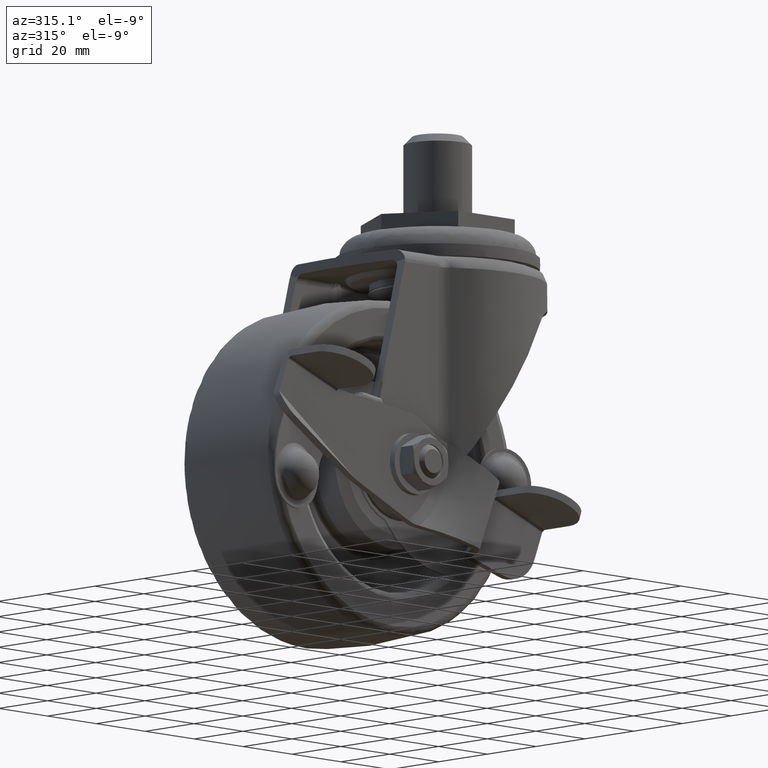
[diagram: clean part render]
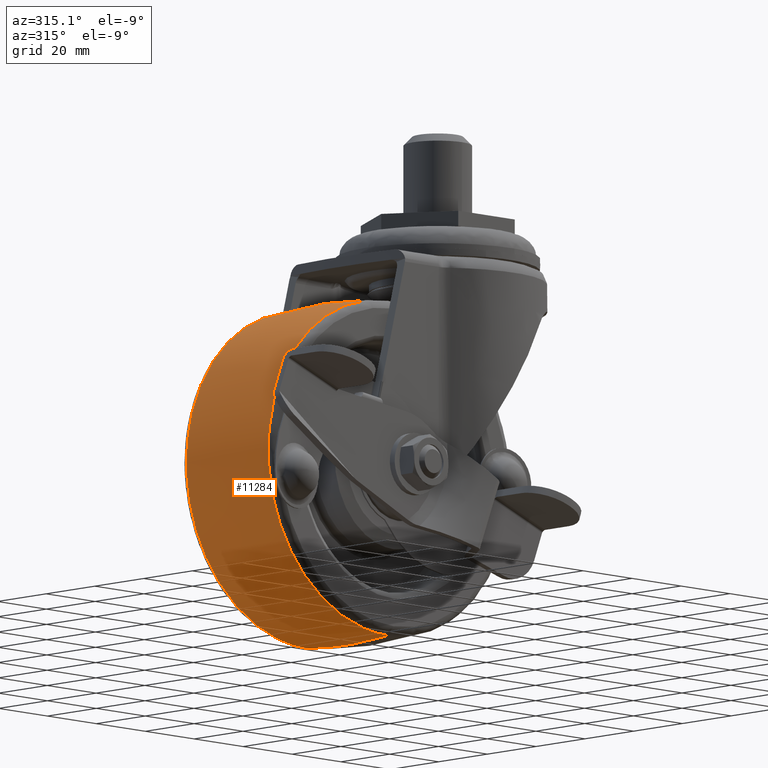
[diagram: same view with one face highlighted and labeled with its STEP entity id]
A machine part, auxiliary view. The second image highlights one B-rep face of the part: STEP entity #11284.
In plain terms, the highlighted face is a freeform B-spline surface patch.
Its self-contained STEP definition (entity closure, byte-faithful):
#11003=CARTESIAN_POINT('',(-85.868843852250095,-16.779638064506781,-77.809849971038830));
#11004=VERTEX_POINT('',#11003);
#11018=CARTESIAN_POINT('',(-37.0,-16.779637920549199,-122.558524584321300));
#11019=VERTEX_POINT('',#11018);
#11020=CARTESIAN_POINT('',(-85.868843852250095,-16.779638064506788,-77.809849971038830));
#11021=CARTESIAN_POINT('',(-81.922360370645549,-16.779637992541478,-122.558524640269350));
#11022=CARTESIAN_POINT('',(-37.0,-16.779637920549199,-122.558524584321300));
#11030=(BOUNDED_CURVE()B_SPLINE_CURVE(2,(#11020,#11021,#11022),.UNSPECIFIED.,.F.,.U.)B_SPLINE_CURVE_WITH_KNOTS((3,3),(0.765281544351815,1.0),.UNSPECIFIED.)CURVE()GEOMETRIC_REPRESENTATION_ITEM()RATIONAL_B_SPLINE_CURVE((0.966381852339110,0.725010224041122,1.0))REPRESENTATION_ITEM(''));
#11031=EDGE_CURVE('',#11004,#11019,#11030,.T.);
#11093=CARTESIAN_POINT('',(-37.0,-16.779637920490050,-24.441475415672009));
#11094=VERTEX_POINT('',#11093);
#11108=CARTESIAN_POINT('',(-37.0,-16.779637920490050,-24.441475415672009));
#11109=CARTESIAN_POINT('',(-86.058522565242498,-16.779637986412595,-24.441475466902979));
#11110=CARTESIAN_POINT('',(-86.058523199629732,-16.779638058434461,-73.500000107175623));
#11111=CARTESIAN_POINT('',(-86.058523227549529,-16.779638061604189,-75.659098998873418));
#11112=CARTESIAN_POINT('',(-85.868843852250095,-16.779638064506788,-77.809849971038830));
#11120=(BOUNDED_CURVE()B_SPLINE_CURVE(2,(#11108,#11109,#11110,#11111,#11112),.UNSPECIFIED.,.F.,.U.)B_SPLINE_CURVE_WITH_KNOTS((3,2,3),(0.500000000000000,0.750000000000000,0.765281544351815),.UNSPECIFIED.)CURVE()GEOMETRIC_REPRESENTATION_ITEM()RATIONAL_B_SPLINE_CURVE((1.0,0.707106781186547,1.0,0.982096557145425,0.966381852339110))REPRESENTATION_ITEM(''));
#11121=EDGE_CURVE('',#11094,#11004,#11120,.T.);
#11160=CARTESIAN_POINT('',(-37.0,16.779649867030152,-122.558523239497300));
#11161=VERTEX_POINT('',#11160);
#11162=CARTESIAN_POINT('',(-37.0,-16.779637920549199,-122.558524584321300));
#11163=CARTESIAN_POINT('',(-37.000000000000043,-12.776367559165900,-123.009180097572300));
#11164=CARTESIAN_POINT('',(-36.999999999999950,-1.586281364282039,-123.814258282421310));
#11165=CARTESIAN_POINT('',(-37.000000000000057,9.643407289933570,-123.362239167050400));
#11166=CARTESIAN_POINT('',(-37.0,16.779649867030152,-122.558523239497300));
#11167=B_SPLINE_CURVE_WITH_KNOTS('',3,(#11162,#11163,#11164,#11165,#11166),.UNSPECIFIED.,.F.,.U.,(4,1,4),(-2.801762E-009,12.085685451898700,33.629693436592888),.UNSPECIFIED.);
#11168=EDGE_CURVE('',#11019,#11161,#11167,.T.);
#11185=CARTESIAN_POINT('',(-37.0,16.779649867001449,-24.441476760499491));
#11186=VERTEX_POINT('',#11185);
#11202=CARTESIAN_POINT('',(-37.0,-16.779637920490050,-24.441475415672009));
#11203=CARTESIAN_POINT('',(-36.999999999999979,-11.035836471647450,-23.794740682324061));
#11204=CARTESIAN_POINT('',(-37.000000000000128,0.176256226108277,-23.185630177677631));
#11205=CARTESIAN_POINT('',(-37.0,11.383937440151660,-23.833968678960542));
#11206=CARTESIAN_POINT('',(-37.0,16.779649867001449,-24.441476760499491));
#11207=B_SPLINE_CURVE_WITH_KNOTS('',3,(#11202,#11203,#11204,#11205,#11206),.UNSPECIFIED.,.F.,.U.,(4,1,4),(-2.802167E-009,17.340285091781460,33.629693436504482),.UNSPECIFIED.);
#11208=EDGE_CURVE('',#11094,#11186,#11207,.T.);
#11215=CARTESIAN_POINT('',(-37.000000000000007,-18.465704698484352,-24.640946697930492));
#11216=CARTESIAN_POINT('',(-37.0,-9.268100377648732,-23.500000000000007));
#11217=CARTESIAN_POINT('',(-37.0,-4.867810E-015,-23.500000000000011));
#11218=CARTESIAN_POINT('',(-37.000000000000014,9.268104124571597,-23.500000000000007));
#11219=CARTESIAN_POINT('',(-37.000000000000007,18.465712107046045,-24.640947616949777));
#11220=CARTESIAN_POINT('',(-85.859053302069498,-18.465704698484348,-24.640946697930502));
#11221=CARTESIAN_POINT('',(-86.999999999999986,-9.268100377648734,-23.500000000000018));
#11222=CARTESIAN_POINT('',(-86.999999999999986,-4.867810E-015,-23.500000000000018));
#11223=CARTESIAN_POINT('',(-86.999999999999972,9.268104124571599,-23.500000000000018));
#11224=CARTESIAN_POINT('',(-85.859052383050226,18.465712107046055,-24.640947616949781));
#11225=CARTESIAN_POINT('',(-85.859053302069526,-18.465704698484352,-73.500000000000000));
#11226=CARTESIAN_POINT('',(-86.999999999999986,-9.268100377648732,-73.500000000000000));
#11227=CARTESIAN_POINT('',(-87.0,-4.867810E-015,-73.500000000000000));
#11228=CARTESIAN_POINT('',(-87.0,9.268104124571597,-73.500000000000000));
#11229=CARTESIAN_POINT('',(-85.859052383050226,18.465712107046045,-73.500000000000000));
#11230=CARTESIAN_POINT('',(-85.859053302069498,-18.465704698484348,-122.359053302069530));
#11231=CARTESIAN_POINT('',(-86.999999999999986,-9.268100377648734,-123.500000000000000));
#11232=CARTESIAN_POINT('',(-86.999999999999986,-4.867810E-015,-123.499999999999990));
#11233=CARTESIAN_POINT('',(-86.999999999999972,9.268104124571599,-123.499999999999970));
#11234=CARTESIAN_POINT('',(-85.859052383050226,18.465712107046055,-122.359052383050210));
#11235=CARTESIAN_POINT('',(-37.000000000000007,-18.465704698484352,-122.359053302069500));
#11236=CARTESIAN_POINT('',(-37.0,-9.268100377648732,-123.500000000000000));
#11237=CARTESIAN_POINT('',(-37.0,-4.867810E-015,-123.500000000000000));
#11238=CARTESIAN_POINT('',(-37.000000000000014,9.268104124571597,-123.500000000000030));
#11239=CARTESIAN_POINT('',(-37.000000000000007,18.465712107046045,-122.359052383050180));
#11247=(BOUNDED_SURFACE()B_SPLINE_SURFACE(2,2,((#11215,#11220,#11225,#11230,#11235),(#11216,#11221,#11226,#11231,#11236),(#11217,#11222,#11227,#11232,#11237),(#11218,#11223,#11228,#11233,#11238),(#11219,#11224,#11229,#11234,#11239)),.UNSPECIFIED.,.F.,.F.,.U.)B_SPLINE_SURFACE_WITH_KNOTS((3,2,3),(3,2,3),(0.0,18.709207696205851,37.418422857757200),(0.0,82.842712474619006,165.685424949238010),.UNSPECIFIED.)GEOMETRIC_REPRESENTATION_ITEM()RATIONAL_B_SPLINE_SURFACE(((0.977858070588099,0.691450072750839,0.977858070588099,0.691450072750839,0.977858070588099),(0.986984865199306,0.697903691110920,0.986984865199306,0.697903691110920,0.986984865199306),(1.0,0.707106781186548,1.0,0.707106781186548,1.0),(0.986984860006009,0.697903687438704,0.986984860006009,0.697903687438704,0.986984860006009),(0.977858063304555,0.691450067600595,0.977858063304555,0.691450067600595,0.977858063304555)))REPRESENTATION_ITEM('')SURFACE());
#11248=ORIENTED_EDGE('',*,*,#11168,.F.);
#11249=ORIENTED_EDGE('',*,*,#11031,.F.);
#11250=ORIENTED_EDGE('',*,*,#11121,.F.);
#11251=ORIENTED_EDGE('',*,*,#11208,.T.);
#11252=CARTESIAN_POINT('',(-85.671681510103070,16.779649936100860,-67.351336726865696));
#11253=VERTEX_POINT('',#11252);
#11254=CARTESIAN_POINT('',(-37.0,16.779649867001449,-24.441476760499491));
#11255=CARTESIAN_POINT('',(-80.250905536474022,16.779649901544875,-24.441476722277141));
#11256=CARTESIAN_POINT('',(-85.671681510103070,16.779649936100864,-67.351336726865696));
#11264=(BOUNDED_CURVE()B_SPLINE_CURVE(2,(#11254,#11255,#11256),.UNSPECIFIED.,.F.,.U.)B_SPLINE_CURVE_WITH_KNOTS((3,3),(0.500000000000000,0.728321257017728),.UNSPECIFIED.)CURVE()GEOMETRIC_REPRESENTATION_ITEM()RATIONAL_B_SPLINE_CURVE((1.0,0.732505008434177,0.953608358630395))REPRESENTATION_ITEM(''));
#11265=EDGE_CURVE('',#11186,#11253,#11264,.T.);
#11266=ORIENTED_EDGE('',*,*,#11265,.T.);
#11267=CARTESIAN_POINT('',(-85.671681510103070,16.779649936100864,-67.351336726865696));
#11268=CARTESIAN_POINT('',(-86.058522572680999,16.779649934185745,-70.413499338433269));
#11269=CARTESIAN_POINT('',(-86.058522553645460,16.779649932013349,-73.499999928078509));
#11270=CARTESIAN_POINT('',(-86.058522251084426,16.779649897484266,-122.558523205799740));
#11271=CARTESIAN_POINT('',(-37.0,16.779649867030152,-122.558523239497300));
#11279=(BOUNDED_CURVE()B_SPLINE_CURVE(2,(#11267,#11268,#11269,#11270,#11271),.UNSPECIFIED.,.F.,.U.)B_SPLINE_CURVE_WITH_KNOTS((3,2,3),(0.728321257017728,0.750000000000000,1.0),.UNSPECIFIED.)CURVE()GEOMETRIC_REPRESENTATION_ITEM()RATIONAL_B_SPLINE_CURVE((0.953608358630395,0.974601772752371,1.0,0.707106781186547,1.0))REPRESENTATION_ITEM(''));
#11280=EDGE_CURVE('',#11253,#11161,#11279,.T.);
#11281=ORIENTED_EDGE('',*,*,#11280,.T.);
#11282=EDGE_LOOP('',(#11248,#11249,#11250,#11251,#11266,#11281));
#11283=FACE_OUTER_BOUND('',#11282,.T.);
#11284=ADVANCED_FACE('',(#11283),#11247,.T.);